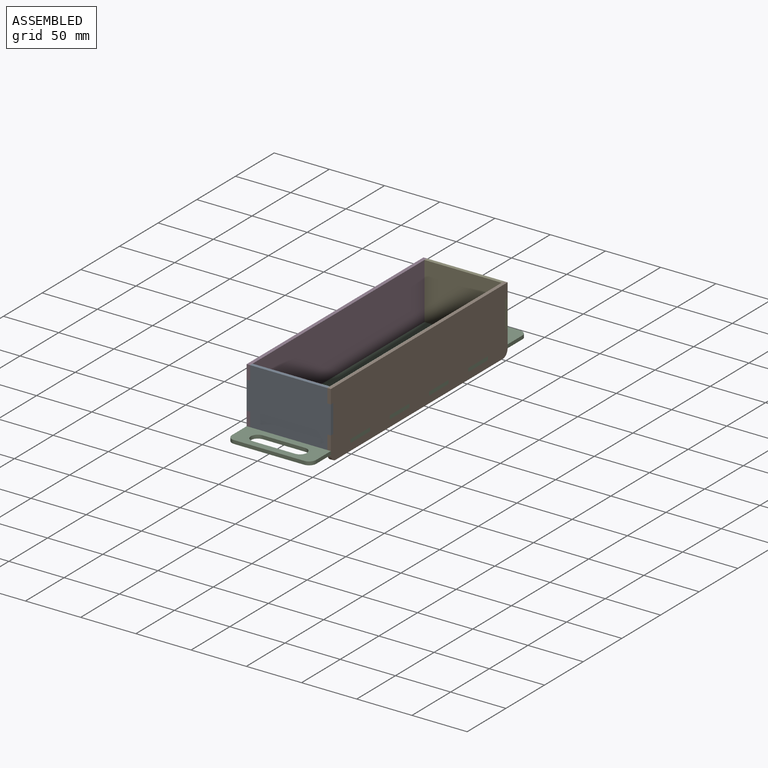
[diagram: assembled view]
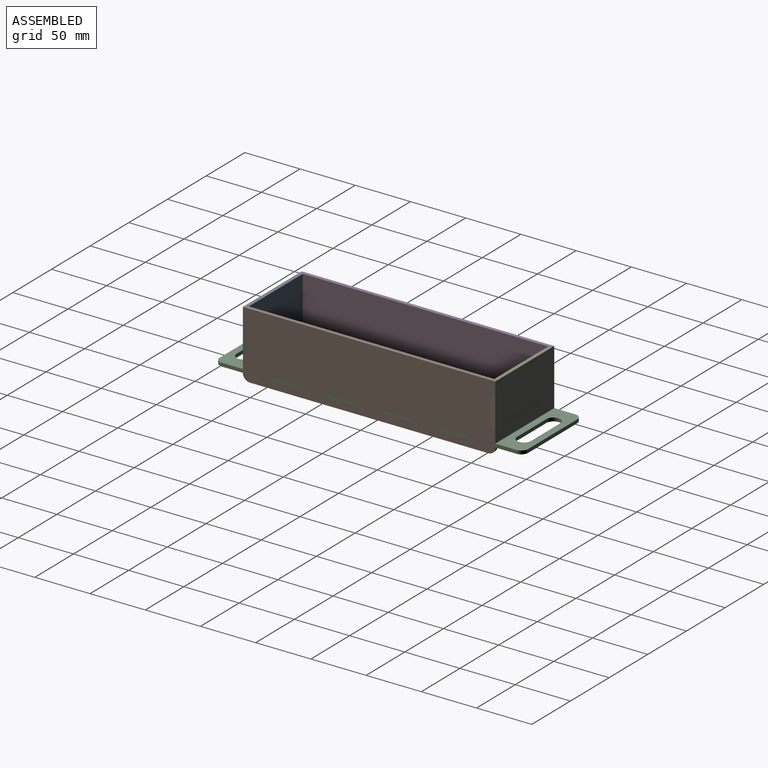
[diagram: assembled view, second angle]
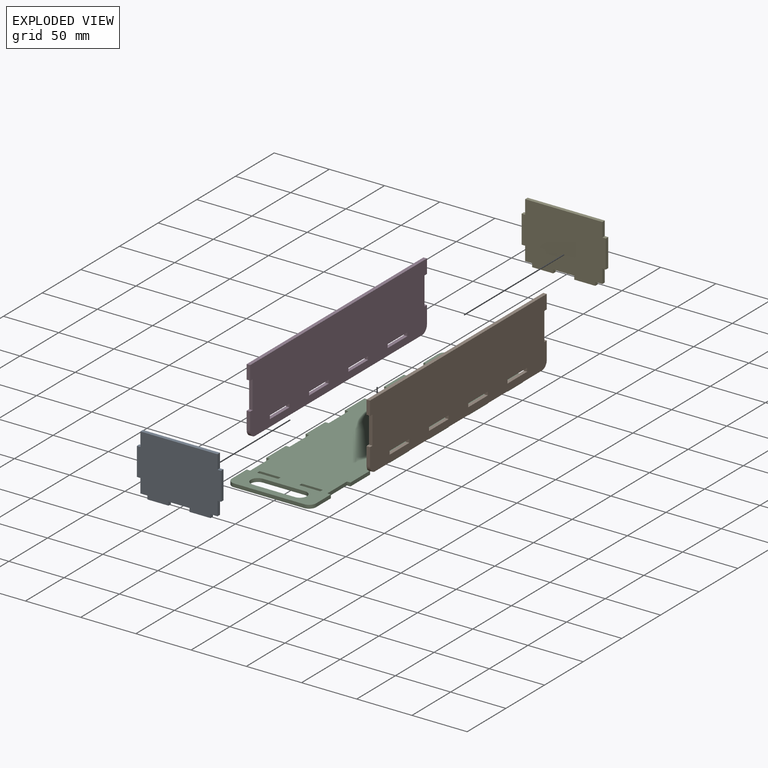
[diagram: exploded view]
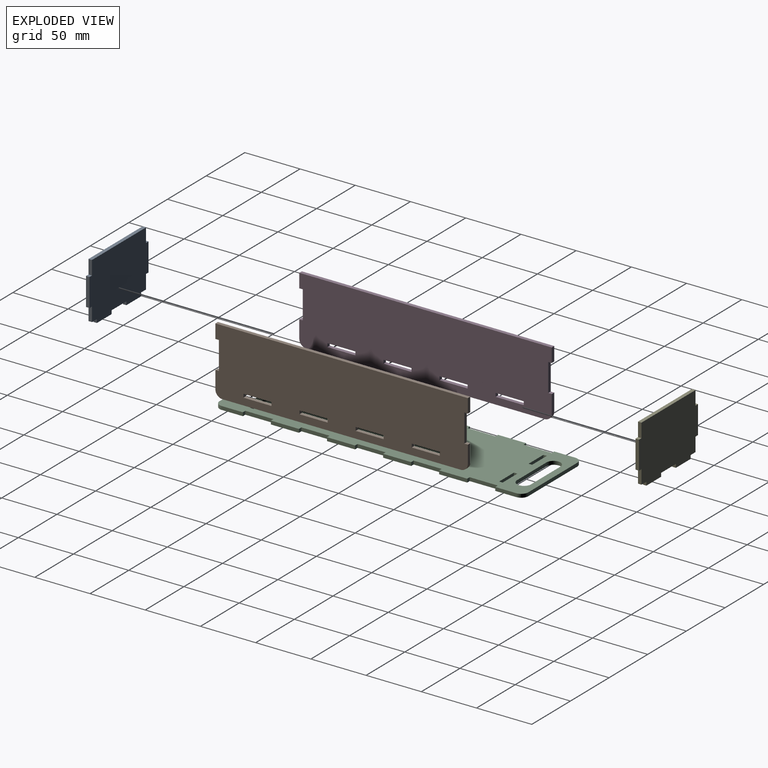
[diagram: exploded view, second angle]
ASSEMBLY  parts=5 mates=12
PART A: 22 faces, bbox 76.2x3.2x54 mm
  f0: plane 12.7x3.18mm, normal (1,0,0), area 40.3mm2, adj f1,f19,f20,f21
  f1: plane 69.85x3.18mm, normal (0,0,1), area 221.8mm2, adj f0,f2,f20,f21
  f2: plane 12.7x3.18mm, normal (-1,0,0), area 40.3mm2, adj f1,f3,f20,f21
  f3: plane 3.18x3.18mm, normal (0,0,1), area 10.1mm2, adj f2,f4,f20,f21
  f4: plane 25.4x3.18mm, normal (-1,0,0), area 80.6mm2, adj f3,f5,f20,f21
  f5: plane 3.18x3.18mm, normal (0,0,-1), area 10.1mm2, adj f4,f6,f20,f21
  f6: plane 12.7x3.18mm, normal (-1,0,0), area 40.3mm2, adj f5,f7,f20,f21
  f7: plane 6.35x3.18mm, normal (0,0,-1), area 20.2mm2, adj f6,f8,f20,f21
  f8: plane 3.18x3.18mm, normal (-1,0,0), area 10.1mm2, adj f7,f9,f20,f21
  f9: plane 19.05x3.18mm, normal (0,0,-1), area 60.5mm2, adj f8,f10,f20,f21
  f10: plane 3.18x3.18mm, normal (1,0,0), area 10.1mm2, adj f9,f11,f20,f21
  f11: plane 19.05x3.18mm, normal (0,0,-1), area 60.5mm2, adj f10,f12,f20,f21
  f12: plane 3.18x3.18mm, normal (-1,0,0), area 10.1mm2, adj f11,f13,f20,f21
  f13: plane 19.05x3.18mm, normal (0,0,-1), area 60.5mm2, adj f12,f14,f20,f21
  f14: plane 3.18x3.18mm, normal (1,0,0), area 10.1mm2, adj f13,f15,f20,f21
  f15: plane 6.35x3.18mm, normal (0,0,-1), area 20.2mm2, adj f14,f16,f20,f21
  f16: plane 12.7x3.18mm, normal (1,0,0), area 40.3mm2, adj f15,f17,f20,f21
  f17: plane 3.18x3.18mm, normal (0,0,-1), area 10.1mm2, adj f16,f18,f20,f21
  f18: plane 25.4x3.18mm, normal (1,0,0), area 80.6mm2, adj f17,f19,f20,f21
  f19: plane 3.18x3.18mm, normal (0,0,1), area 10.1mm2, adj f0,f18,f20,f21
  f20: plane 76.2x53.98mm, normal (0,-1,0), area 3830.6mm2, adj f0,f1,f2,f3,f4,f5,f6,f7
  f21: plane 76.2x53.98mm, normal (0,1,0), area 3830.6mm2, adj f0,f1,f2,f3,f4,f5,f6,f7
PART B: 32 faces, bbox 3.2x228.6x60.3 mm
  f0: plane 215.9x3.18mm, normal (0,0,-1), area 685.5mm2, adj f28,f29,f30,f31
  f1: plane 15.88x3.18mm, normal (0,1,0), area 50.4mm2, adj f2,f28,f29,f31
  f2: plane 3.18x3.18mm, normal (0,0,1), area 10.1mm2, adj f1,f3,f28,f29
  f3: plane 25.4x3.18mm, normal (0,1,0), area 80.6mm2, adj f2,f4,f28,f29
  f4: plane 3.18x3.18mm, normal (0,0,-1), area 10.1mm2, adj f3,f5,f28,f29
  f5: plane 12.7x3.18mm, normal (0,1,0), area 40.3mm2, adj f4,f6,f28,f29
  f6: plane 228.6x3.18mm, normal (0,0,1), area 725.8mm2, adj f5,f7,f28,f29
  f7: plane 12.7x3.18mm, normal (0,-1,0), area 40.3mm2, adj f6,f8,f28,f29
  f8: plane 3.18x3.18mm, normal (0,0,-1), area 10.1mm2, adj f7,f9,f28,f29
  f9: plane 25.4x3.18mm, normal (0,-1,0), area 80.6mm2, adj f8,f10,f28,f29
  f10: plane 3.18x3.18mm, normal (0,0,1), area 10.1mm2, adj f9,f27,f28,f29
  f11: plane 3.18x3.18mm, normal (0,1,0), area 10.1mm2, adj f12,f23,f28,f29
  f12: plane 25.4x3.18mm, normal (0,0,-1), area 80.6mm2, adj f11,f13,f28,f29
  f13: plane 3.18x3.18mm, normal (0,-1,0), area 10.1mm2, adj f12,f23,f28,f29
  f14: plane 3.18x3.18mm, normal (0,1,0), area 10.1mm2, adj f15,f24,f28,f29
  f15: plane 25.4x3.18mm, normal (0,0,-1), area 80.6mm2, adj f14,f16,f28,f29
  f16: plane 3.18x3.18mm, normal (0,-1,0), area 10.1mm2, adj f15,f24,f28,f29
  f17: plane 3.18x3.18mm, normal (0,1,0), area 10.1mm2, adj f18,f25,f28,f29
  f18: plane 25.4x3.18mm, normal (0,0,-1), area 80.6mm2, adj f17,f19,f28,f29
  f19: plane 3.18x3.18mm, normal (0,-1,0), area 10.1mm2, adj f18,f25,f28,f29
  f20: plane 25.4x3.18mm, normal (0,0,-1), area 80.6mm2, adj f21,f26,f28,f29
  f21: plane 3.18x3.18mm, normal (0,-1,0), area 10.1mm2, adj f20,f22,f28,f29
  f22: plane 25.4x3.18mm, normal (0,0,1), area 80.6mm2, adj f21,f26,f28,f29
  f23: plane 25.4x3.18mm, normal (0,0,1), area 80.6mm2, adj f11,f13,f28,f29
  f24: plane 25.4x3.18mm, normal (0,0,1), area 80.6mm2, adj f14,f16,f28,f29
  f25: plane 25.4x3.18mm, normal (0,0,1), area 80.6mm2, adj f17,f19,f28,f29
  f26: plane 3.18x3.18mm, normal (0,1,0), area 10.1mm2, adj f20,f22,f28,f29
  f27: plane 15.88x3.18mm, normal (0,-1,0), area 50.4mm2, adj f10,f28,f29,f30
  f28: plane 228.6x60.33mm, normal (1,0,0), area 13289.1mm2, adj f0,f1,f2,f3,f4,f5,f6,f7
  f29: plane 228.6x60.33mm, normal (-1,0,0), area 13289.1mm2, adj f0,f1,f2,f3,f4,f5,f6,f7
  f30: cylinder r=6.35mm len=6.35mm, axis (-1,0,0), area 31.7mm2, adj f0,f27,f28,f29
  f31: cylinder r=6.35mm len=6.35mm, axis (1,0,0), area 31.7mm2, adj f0,f1,f28,f29
PART C: 74 faces, bbox 76.2x279.4x3.2 mm
  f0: cylinder r=6.35mm len=12.7mm, axis (0,0,-1), area 63.3mm2, adj f1,f67,f68,f69
  f1: plane 38.1x3.18mm, normal (0,-1,0), area 121mm2, adj f0,f2,f68,f69
  f2: cylinder r=6.35mm len=12.7mm, axis (0,0,-1), area 63.3mm2, adj f1,f67,f68,f69
  f3: cylinder r=6.35mm len=12.7mm, axis (0,0,-1), area 63.3mm2, adj f4,f61,f68,f69
  f4: plane 38.1x3.18mm, normal (0,-1,0), area 121mm2, adj f3,f5,f68,f69
  f5: cylinder r=6.35mm len=12.7mm, axis (0,0,-1), area 63.3mm2, adj f4,f61,f68,f69
  f6: plane 19.05x3.18mm, normal (0,-1,0), area 60.5mm2, adj f7,f62,f68,f69
  f7: plane 3.18x3.18mm, normal (-1,0,0), area 10.1mm2, adj f6,f8,f68,f69
  f8: plane 19.05x3.18mm, normal (0,1,0), area 60.5mm2, adj f7,f62,f68,f69
  f9: plane 3.18x3.18mm, normal (1,0,0), area 10.1mm2, adj f10,f63,f68,f69
  f10: plane 19.05x3.18mm, normal (0,-1,0), area 60.5mm2, adj f9,f11,f68,f69
  f11: plane 3.18x3.18mm, normal (-1,0,0), area 10.1mm2, adj f10,f63,f68,f69
  f12: plane 3.18x3.18mm, normal (1,0,0), area 10.1mm2, adj f13,f64,f68,f69
  f13: plane 19.05x3.18mm, normal (0,-1,0), area 60.5mm2, adj f12,f14,f68,f69
  f14: plane 3.18x3.18mm, normal (-1,0,0), area 10.1mm2, adj f13,f64,f68,f69
  f15: plane 3.18x3.18mm, normal (1,0,0), area 10.1mm2, adj f16,f65,f68,f69
  f16: plane 19.05x3.18mm, normal (0,-1,0), area 60.5mm2, adj f15,f17,f68,f69
  f17: plane 3.18x3.18mm, normal (-1,0,0), area 10.1mm2, adj f16,f65,f68,f69
  f18: plane 19.05x3.18mm, normal (-1,0,0), area 60.5mm2, adj f66,f68,f69,f70
  f19: plane 63.5x3.18mm, normal (0,-1,0), area 201.6mm2, adj f68,f69,f70,f71
  f20: plane 19.05x3.18mm, normal (1,0,0), area 60.5mm2, adj f21,f68,f69,f71
  f21: plane 3.18x3.18mm, normal (0,1,0), area 10.1mm2, adj f20,f22,f68,f69
  f22: plane 25.4x3.18mm, normal (1,0,0), area 80.6mm2, adj f21,f23,f68,f69
  f23: plane 3.18x3.18mm, normal (0,-1,0), area 10.1mm2, adj f22,f24,f68,f69
  f24: plane 25.4x3.18mm, normal (1,0,0), area 80.6mm2, adj f23,f25,f68,f69
  f25: plane 3.18x3.18mm, normal (0,1,0), area 10.1mm2, adj f24,f26,f68,f69
  f26: plane 25.4x3.18mm, normal (1,0,0), area 80.6mm2, adj f25,f27,f68,f69
  f27: plane 3.18x3.18mm, normal (0,-1,0), area 10.1mm2, adj f26,f28,f68,f69
  f28: plane 25.4x3.18mm, normal (1,0,0), area 80.6mm2, adj f27,f29,f68,f69
  f29: plane 3.18x3.18mm, normal (0,1,0), area 10.1mm2, adj f28,f30,f68,f69
  f30: plane 25.4x3.18mm, normal (1,0,0), area 80.6mm2, adj f29,f31,f68,f69
  f31: plane 3.18x3.18mm, normal (0,-1,0), area 10.1mm2, adj f30,f32,f68,f69
  f32: plane 25.4x3.18mm, normal (1,0,0), area 80.6mm2, adj f31,f33,f68,f69
  f33: plane 3.18x3.18mm, normal (0,1,0), area 10.1mm2, adj f32,f34,f68,f69
  f34: plane 25.4x3.18mm, normal (1,0,0), area 80.6mm2, adj f33,f35,f68,f69
  f35: plane 3.18x3.18mm, normal (0,-1,0), area 10.1mm2, adj f34,f36,f68,f69
  f36: plane 25.4x3.18mm, normal (1,0,0), area 80.6mm2, adj f35,f37,f68,f69
  f37: plane 3.18x3.18mm, normal (0,1,0), area 10.1mm2, adj f36,f38,f68,f69
  f38: plane 25.4x3.18mm, normal (1,0,0), area 80.6mm2, adj f37,f39,f68,f69
  f39: plane 3.18x3.18mm, normal (0,-1,0), area 10.1mm2, adj f38,f40,f68,f69
  f40: plane 19.05x3.18mm, normal (1,0,0), area 60.5mm2, adj f39,f68,f69,f72
  f41: plane 63.5x3.18mm, normal (0,1,0), area 201.6mm2, adj f68,f69,f72,f73
  f42: plane 19.05x3.18mm, normal (-1,0,0), area 60.5mm2, adj f43,f68,f69,f73
  f43: plane 3.18x3.18mm, normal (0,-1,0), area 10.1mm2, adj f42,f44,f68,f69
  f44: plane 25.4x3.18mm, normal (-1,0,0), area 80.6mm2, adj f43,f45,f68,f69
  f45: plane 3.18x3.18mm, normal (0,1,0), area 10.1mm2, adj f44,f46,f68,f69
  f46: plane 25.4x3.18mm, normal (-1,0,0), area 80.6mm2, adj f45,f47,f68,f69
  f47: plane 3.18x3.18mm, normal (0,-1,0), area 10.1mm2, adj f46,f48,f68,f69
  f48: plane 25.4x3.18mm, normal (-1,0,0), area 80.6mm2, adj f47,f49,f68,f69
  f49: plane 3.18x3.18mm, normal (0,1,0), area 10.1mm2, adj f48,f50,f68,f69
  f50: plane 25.4x3.18mm, normal (-1,0,0), area 80.6mm2, adj f49,f51,f68,f69
  f51: plane 3.18x3.18mm, normal (0,-1,0), area 10.1mm2, adj f50,f52,f68,f69
  f52: plane 25.4x3.18mm, normal (-1,0,0), area 80.6mm2, adj f51,f53,f68,f69
  f53: plane 3.18x3.18mm, normal (0,1,0), area 10.1mm2, adj f52,f54,f68,f69
  f54: plane 25.4x3.18mm, normal (-1,0,0), area 80.6mm2, adj f53,f55,f68,f69
  f55: plane 3.18x3.18mm, normal (0,-1,0), area 10.1mm2, adj f54,f56,f68,f69
  f56: plane 25.4x3.18mm, normal (-1,0,0), area 80.6mm2, adj f55,f57,f68,f69
  f57: plane 3.18x3.18mm, normal (0,1,0), area 10.1mm2, adj f56,f58,f68,f69
  f58: plane 25.4x3.18mm, normal (-1,0,0), area 80.6mm2, adj f57,f59,f68,f69
  f59: plane 3.18x3.18mm, normal (0,-1,0), area 10.1mm2, adj f58,f60,f68,f69
  f60: plane 25.4x3.18mm, normal (-1,0,0), area 80.6mm2, adj f59,f66,f68,f69
  f61: plane 38.1x3.18mm, normal (0,1,0), area 121mm2, adj f3,f5,f68,f69
  f62: plane 3.18x3.18mm, normal (1,0,0), area 10.1mm2, adj f6,f8,f68,f69
  f63: plane 19.05x3.18mm, normal (0,1,0), area 60.5mm2, adj f9,f11,f68,f69
  f64: plane 19.05x3.18mm, normal (0,1,0), area 60.5mm2, adj f12,f14,f68,f69
  f65: plane 19.05x3.18mm, normal (0,1,0), area 60.5mm2, adj f15,f17,f68,f69
  f66: plane 3.18x3.18mm, normal (0,1,0), area 10.1mm2, adj f18,f60,f68,f69
  f67: plane 38.1x3.18mm, normal (0,1,0), area 121mm2, adj f0,f2,f68,f69
  f68: plane 279.4x76.2mm, normal (0,0,1), area 18986.2mm2, adj f0,f1,f2,f3,f4,f5,f6,f7
  f69: plane 279.4x76.2mm, normal (0,0,-1), area 18986.2mm2, adj f0,f1,f2,f3,f4,f5,f6,f7
  f70: cylinder r=6.35mm len=6.35mm, axis (0,0,-1), area 31.7mm2, adj f18,f19,f68,f69
  f71: cylinder r=6.35mm len=6.35mm, axis (0,0,-1), area 31.7mm2, adj f19,f20,f68,f69
  f72: cylinder r=6.35mm len=6.35mm, axis (0,0,-1), area 31.7mm2, adj f40,f41,f68,f69
  f73: cylinder r=6.35mm len=6.35mm, axis (0,0,-1), area 31.7mm2, adj f41,f42,f68,f69
PART D: same geometry as B
PART E: same geometry as A
PLACE A t=(-88.52,-105.69,67.69)mm
PLACE B t=(-88.52,-105.69,67.69)mm
PLACE C t=(-88.52,-105.69,67.69)mm
PLACE D t=(-161.54,-105.69,67.69)mm
PLACE E t=(-88.52,119.74,67.69)mm
MATE planar C.f13 <-> A.f21  axis (0,-1,0) through (-69.47,-77.11,69.28)mm
MATE planar A.f11 <-> C.f68  axis (0,0,-1) through (-50.42,-78.7,70.87)mm
MATE planar E.f0 <-> B.f29  axis (1,0,0) through (-15.49,146.72,115.32)mm
MATE planar D.f28 <-> C.f44  axis (1,0,0) through (-85.34,34.01,92.02)mm
MATE planar E.f21 <-> C.f16  axis (0,1,0) through (-50.42,148.31,95.41)mm
MATE planar B.f9 <-> A.f21  axis (0,-1,0) through (-13.91,-77.11,96.27)mm
MATE planar C.f68 <-> D.f20  axis (0,0,1) through (-50.42,34.01,70.87)mm
MATE planar B.f29 <-> C.f38  axis (-1,0,0) through (-15.49,34.01,92.02)mm
MATE planar B.f24 <-> C.f69  axis (0,0,1) through (-13.91,-42.19,67.69)mm
MATE planar A.f14 <-> C.f11  axis (1,0,0) through (-21.84,-78.7,69.28)mm
MATE planar D.f9 <-> A.f21  axis (0,-1,0) through (-86.93,-77.11,96.27)mm
MATE planar C.f68 <-> E.f11  axis (0,0,1) through (-50.42,34.01,70.87)mm
